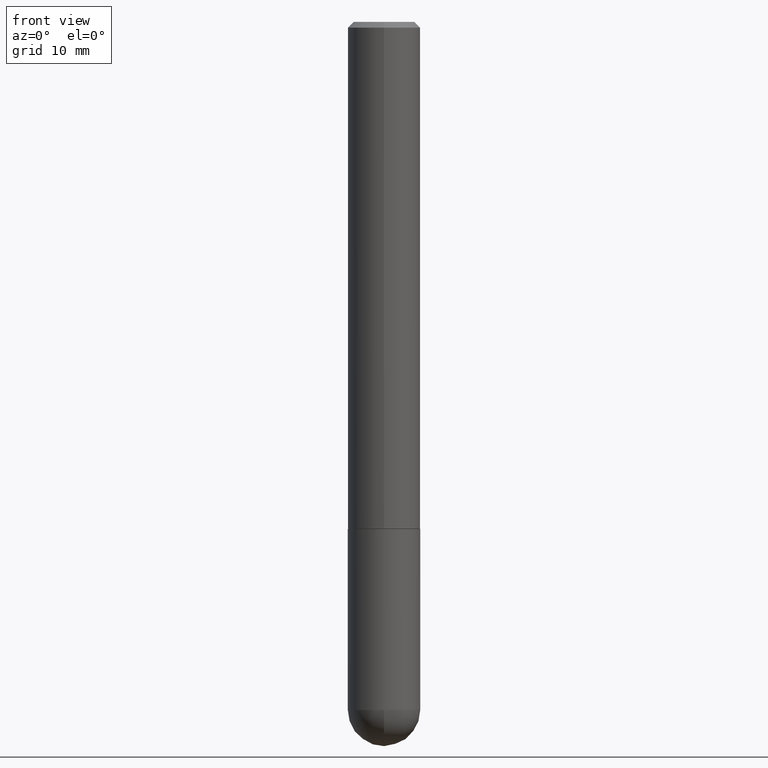
[diagram: clean part render]
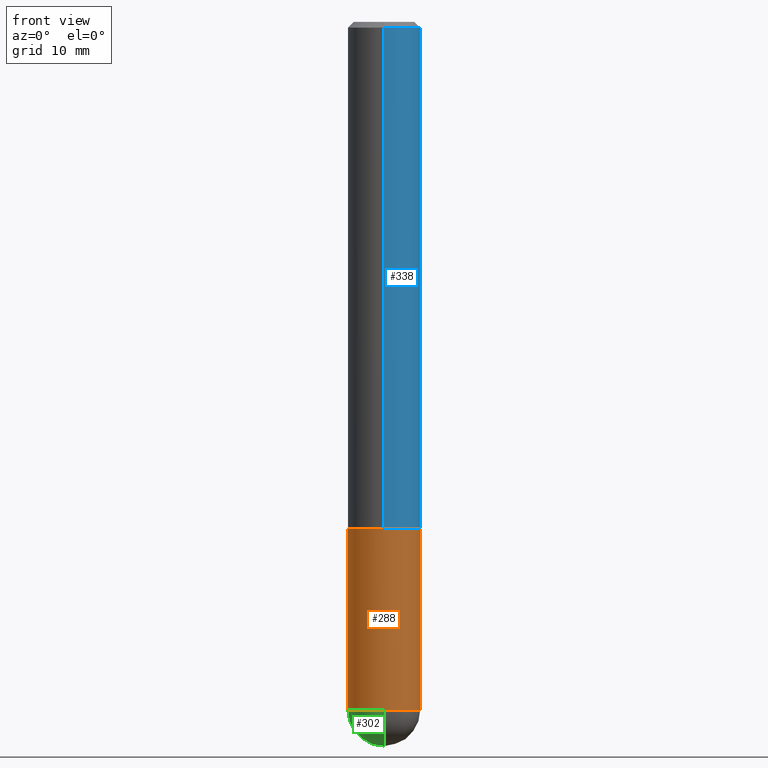
[diagram: same view with three faces highlighted in distinct colors, each labeled with its STEP entity id]
A machine part, front view with three faces highlighted in distinct colors.
Their STEP definitions:

[orange] entity #288 — the highlighted cylindrical surface (edge-blend (fillet) strip) has radius 3.175 mm, axis along (-0, 0, 1).
#3 = DIRECTION ( 'NONE',  ( -2.445468806185136597E-29, 3.491481338843145583E-15, 1.000000000000000000 ) ) ;
#6 = LINE ( 'NONE', #159, #23 ) ;
#11 = EDGE_LOOP ( 'NONE', ( #32, #266, #256, #381, #195 ) ) ;
#18 = CARTESIAN_POINT ( 'NONE',  ( -0.1250000000000000000, 8.881784197001252323E-16, -6.148668862818632227E-30 ) ) ;
#21 = EDGE_CURVE ( 'NONE', #353, #292, #305, .T. ) ;
#23 = VECTOR ( 'NONE', #323, 39.37007874015748143 ) ;
#24 = CARTESIAN_POINT ( 'NONE',  ( 5.807988414689700538E-29, -8.292268179752471696E-15, -2.375000000000000000 ) ) ;
#32 = ORIENTED_EDGE ( 'NONE', *, *, #21, .F. ) ;
#36 = AXIS2_PLACEMENT_3D ( 'NONE', #24, #248, #343 ) ;
#38 = FACE_OUTER_BOUND ( 'NONE', #11, .T. ) ;
#52 = CARTESIAN_POINT ( 'NONE',  ( 0.1250000000000000000, -8.074050596074771916E-15, -2.375000000000000000 ) ) ;
#61 = CARTESIAN_POINT ( 'NONE',  ( 4.279570410823989044E-29, -6.110092342975505460E-15, -1.750000000000000222 ) ) ;
#77 = EDGE_CURVE ( 'NONE', #226, #198, #390, .T. ) ;
#83 = CARTESIAN_POINT ( 'NONE',  ( 5.807988414689700538E-29, -8.292268179752471696E-15, -2.375000000000000000 ) ) ;
#93 = CYLINDRICAL_SURFACE ( 'NONE', #161, 0.1250000000000000000 ) ;
#95 = AXIS2_PLACEMENT_3D ( 'NONE', #61, #183, #315 ) ;
#106 = DIRECTION ( 'NONE',  ( -2.445468806185136877E-29, 3.491481338843145188E-15, 1.000000000000000000 ) ) ;
#129 = CARTESIAN_POINT ( 'NONE',  ( -8.881784197000694204E-16, -0.1250000000000086320, -2.374999999999999556 ) ) ;
#132 = VERTEX_POINT ( 'NONE', #214 ) ;
#143 = EDGE_CURVE ( 'NONE', #353, #226, #290, .T. ) ;
#159 = CARTESIAN_POINT ( 'NONE',  ( 0.1250000000000000000, -8.728703347107833388E-16, 6.095220969744919741E-30 ) ) ;
#161 = AXIS2_PLACEMENT_3D ( 'NONE', #388, #3, #318 ) ;
#181 = DIRECTION ( 'NONE',  ( 1.000000000000000000, -6.982962677686270655E-15, 0.000000000000000000 ) ) ;
#183 = DIRECTION ( 'NONE',  ( -2.445468806185136597E-29, 3.491481338843145583E-15, 1.000000000000000000 ) ) ;
#184 = AXIS2_PLACEMENT_3D ( 'NONE', #83, #207, #181 ) ;
#195 = ORIENTED_EDGE ( 'NONE', *, *, #354, .F. ) ;
#198 = VERTEX_POINT ( 'NONE', #52 ) ;
#207 = DIRECTION ( 'NONE',  ( -2.445468806185136597E-29, 3.491481338843145583E-15, 1.000000000000000000 ) ) ;
#214 = CARTESIAN_POINT ( 'NONE',  ( 0.1250000000000000000, -6.982962677686288010E-15, -1.750000000000000222 ) ) ;
#226 = VERTEX_POINT ( 'NONE', #129 ) ;
#227 = VECTOR ( 'NONE', #106, 39.37007874015748143 ) ;
#248 = DIRECTION ( 'NONE',  ( -2.445468806185136597E-29, 3.491481338843145583E-15, 1.000000000000000000 ) ) ;
#249 = CIRCLE ( 'NONE', #95, 0.1250000000000000000 ) ;
#256 = ORIENTED_EDGE ( 'NONE', *, *, #77, .T. ) ;
#258 = CARTESIAN_POINT ( 'NONE',  ( -0.1250000000000000000, -6.313001841663863345E-15, -1.750000000000000222 ) ) ;
#266 = ORIENTED_EDGE ( 'NONE', *, *, #143, .T. ) ;
#288 = ADVANCED_FACE ( 'NONE', ( #38 ), #93, .T. ) ;
#290 = CIRCLE ( 'NONE', #184, 0.1250000000000000000 ) ;
#292 = VERTEX_POINT ( 'NONE', #258 ) ;
#305 = LINE ( 'NONE', #18, #227 ) ;
#315 = DIRECTION ( 'NONE',  ( 1.000000000000000000, -6.982962677686262766E-15, 0.000000000000000000 ) ) ;
#318 = DIRECTION ( 'NONE',  ( 1.000000000000000000, -6.982962677686266711E-15, 4.876176775795935793E-29 ) ) ;
#323 = DIRECTION ( 'NONE',  ( -2.445468806185136877E-29, 3.491481338843145188E-15, 1.000000000000000000 ) ) ;
#343 = DIRECTION ( 'NONE',  ( 1.000000000000000000, -6.982962677686270655E-15, 0.000000000000000000 ) ) ;
#345 = CARTESIAN_POINT ( 'NONE',  ( -0.1250000000000000000, -6.313001841663864134E-15, -2.375000000000000000 ) ) ;
#353 = VERTEX_POINT ( 'NONE', #345 ) ;
#354 = EDGE_CURVE ( 'NONE', #292, #132, #249, .T. ) ;
#381 = ORIENTED_EDGE ( 'NONE', *, *, #382, .T. ) ;
#382 = EDGE_CURVE ( 'NONE', #198, #132, #6, .T. ) ;
#388 = CARTESIAN_POINT ( 'NONE',  ( 0.000000000000000000, 0.000000000000000000, 0.000000000000000000 ) ) ;
#390 = CIRCLE ( 'NONE', #36, 0.1250000000000000000 ) ;

[blue] entity #338 — the highlighted cylindrical surface (edge-blend (fillet) strip) has radius 3.175 mm, axis along (-0, 0, 1).
#10 = EDGE_LOOP ( 'NONE', ( #160, #44, #104, #205 ) ) ;
#13 = VERTEX_POINT ( 'NONE', #334 ) ;
#19 = DIRECTION ( 'NONE',  ( -6.982962677686265133E-15, -1.000000000000000000, 4.370956789862812472E-15 ) ) ;
#26 = CARTESIAN_POINT ( 'NONE',  ( 4.891412266665553962E-31, -6.982282945719821124E-17, -0.02000000000000002470 ) ) ;
#28 = AXIS2_PLACEMENT_3D ( 'NONE', #174, #306, #19 ) ;
#35 = EDGE_CURVE ( 'NONE', #13, #328, #175, .T. ) ;
#39 = CARTESIAN_POINT ( 'NONE',  ( 8.728703347107837333E-16, 0.1249999999999999306, -0.02000000000000046185 ) ) ;
#44 = ORIENTED_EDGE ( 'NONE', *, *, #72, .T. ) ;
#57 = AXIS2_PLACEMENT_3D ( 'NONE', #26, #307, #148 ) ;
#72 = EDGE_CURVE ( 'NONE', #326, #412, #241, .T. ) ;
#99 = CYLINDRICAL_SURFACE ( 'NONE', #200, 0.1250000000000001110 ) ;
#104 = ORIENTED_EDGE ( 'NONE', *, *, #147, .F. ) ;
#121 = CARTESIAN_POINT ( 'NONE',  ( 8.881784197001260212E-16, 0.1250000000000001110, -4.363926841074887247E-16 ) ) ;
#130 = FACE_OUTER_BOUND ( 'NONE', #10, .T. ) ;
#147 = EDGE_CURVE ( 'NONE', #328, #412, #213, .T. ) ;
#148 = DIRECTION ( 'NONE',  ( -6.982962677686265922E-15, -1.000000000000000000, 3.483106191921935554E-15 ) ) ;
#149 = CARTESIAN_POINT ( 'NONE',  ( 8.881784197001479121E-16, 0.1249999999999941019, -1.749000000000000554 ) ) ;
#160 = ORIENTED_EDGE ( 'NONE', *, *, #210, .T. ) ;
#174 = CARTESIAN_POINT ( 'NONE',  ( 4.277540027199021844E-29, -6.106006436031975850E-15, -1.749000000000000110 ) ) ;
#175 = LINE ( 'NONE', #372, #254 ) ;
#188 = CARTESIAN_POINT ( 'NONE',  ( -8.575622497214408537E-16, -0.1250000000000000555, -0.01999999999999959102 ) ) ;
#200 = AXIS2_PLACEMENT_3D ( 'NONE', #260, #224, #284 ) ;
#205 = ORIENTED_EDGE ( 'NONE', *, *, #35, .F. ) ;
#210 = EDGE_CURVE ( 'NONE', #13, #326, #352, .T. ) ;
#213 = CIRCLE ( 'NONE', #57, 0.1250000000000000000 ) ;
#224 = DIRECTION ( 'NONE',  ( -2.445706133332774021E-29, 3.491141472859906642E-15, 1.000000000000000000 ) ) ;
#241 = LINE ( 'NONE', #121, #335 ) ;
#254 = VECTOR ( 'NONE', #281, 39.37007874015748143 ) ;
#260 = CARTESIAN_POINT ( 'NONE',  ( 0.000000000000000000, 0.000000000000000000, 0.000000000000000000 ) ) ;
#281 = DIRECTION ( 'NONE',  ( -2.445706133332773740E-29, 3.491141472859906642E-15, 1.000000000000000000 ) ) ;
#284 = DIRECTION ( 'NONE',  ( -6.982962677686266711E-15, -1.000000000000000000, 3.491141472859906642E-15 ) ) ;
#306 = DIRECTION ( 'NONE',  ( -2.445706133332774021E-29, 3.491141472859906642E-15, 1.000000000000000000 ) ) ;
#307 = DIRECTION ( 'NONE',  ( -2.445706133332774021E-29, 3.491141472859906642E-15, 1.000000000000000000 ) ) ;
#311 = DIRECTION ( 'NONE',  ( -2.445706133332773740E-29, 3.491141472859906642E-15, 1.000000000000000000 ) ) ;
#326 = VERTEX_POINT ( 'NONE', #149 ) ;
#328 = VERTEX_POINT ( 'NONE', #188 ) ;
#334 = CARTESIAN_POINT ( 'NONE',  ( -8.728703347107421208E-16, -0.1250000000000063560, -1.748999999999999666 ) ) ;
#335 = VECTOR ( 'NONE', #311, 39.37007874015748143 ) ;
#338 = ADVANCED_FACE ( 'NONE', ( #130 ), #99, .T. ) ;
#352 = CIRCLE ( 'NONE', #28, 0.1250000000000002498 ) ;
#372 = CARTESIAN_POINT ( 'NONE',  ( -8.728703347107841277E-16, -0.1250000000000001110, 4.363926841074887247E-16 ) ) ;
#412 = VERTEX_POINT ( 'NONE', #39 ) ;

[green] entity #302 — the highlighted spherical surface has radius 3.175 mm.
#27 = SPHERICAL_SURFACE ( 'NONE', #67, 0.1250000000000001943 ) ;
#41 = ORIENTED_EDGE ( 'NONE', *, *, #206, .F. ) ;
#66 = CARTESIAN_POINT ( 'NONE',  ( 5.476868636775814291E-29, -8.766450547892521992E-15, -2.375000000000000000 ) ) ;
#67 = AXIS2_PLACEMENT_3D ( 'NONE', #66, #223, #350 ) ;
#83 = CARTESIAN_POINT ( 'NONE',  ( 5.807988414689700538E-29, -8.292268179752471696E-15, -2.375000000000000000 ) ) ;
#84 = AXIS2_PLACEMENT_3D ( 'NONE', #349, #97, #252 ) ;
#89 = CARTESIAN_POINT ( 'NONE',  ( 5.476868636775814291E-29, -8.766450547892521992E-15, -2.375000000000000000 ) ) ;
#91 = DIRECTION ( 'NONE',  ( -7.105427357601000281E-15, -1.000000000000000000, 0.000000000000000000 ) ) ;
#97 = DIRECTION ( 'NONE',  ( -2.445468806185136597E-29, 3.491481338843145583E-15, 1.000000000000000000 ) ) ;
#116 = DIRECTION ( 'NONE',  ( 6.982962677686265133E-15, 1.000000000000000000, 0.000000000000000000 ) ) ;
#118 = EDGE_CURVE ( 'NONE', #231, #226, #370, .T. ) ;
#129 = CARTESIAN_POINT ( 'NONE',  ( -8.881784197000694204E-16, -0.1250000000000086320, -2.374999999999999556 ) ) ;
#143 = EDGE_CURVE ( 'NONE', #353, #226, #290, .T. ) ;
#178 = CIRCLE ( 'NONE', #84, 0.1250000000000000000 ) ;
#181 = DIRECTION ( 'NONE',  ( 1.000000000000000000, -6.982962677686270655E-15, 0.000000000000000000 ) ) ;
#182 = CARTESIAN_POINT ( 'NONE',  ( 5.476868636775814291E-29, -8.766450547892521992E-15, -2.375000000000000000 ) ) ;
#184 = AXIS2_PLACEMENT_3D ( 'NONE', #83, #207, #181 ) ;
#192 = CIRCLE ( 'NONE', #377, 0.1250000000000001943 ) ;
#202 = ORIENTED_EDGE ( 'NONE', *, *, #265, .F. ) ;
#206 = EDGE_CURVE ( 'NONE', #231, #391, #192, .T. ) ;
#207 = DIRECTION ( 'NONE',  ( -2.445468806185136597E-29, 3.491481338843145583E-15, 1.000000000000000000 ) ) ;
#220 = AXIS2_PLACEMENT_3D ( 'NONE', #89, #239, #91 ) ;
#223 = DIRECTION ( 'NONE',  ( -1.000000000000000000, 6.982962677686265922E-15, -4.883557194083112901E-29 ) ) ;
#226 = VERTEX_POINT ( 'NONE', #129 ) ;
#228 = CARTESIAN_POINT ( 'NONE',  ( 8.728703347108403340E-16, 0.1249999999999915623, -2.375000000000000888 ) ) ;
#231 = VERTEX_POINT ( 'NONE', #320 ) ;
#239 = DIRECTION ( 'NONE',  ( -1.000000000000000000, 7.105427357601001070E-15, -4.926315508542082329E-29 ) ) ;
#252 = DIRECTION ( 'NONE',  ( 1.000000000000000000, -6.982962677686270655E-15, 0.000000000000000000 ) ) ;
#265 = EDGE_CURVE ( 'NONE', #391, #353, #178, .T. ) ;
#290 = CIRCLE ( 'NONE', #184, 0.1250000000000000000 ) ;
#302 = ADVANCED_FACE ( 'NONE', ( #348 ), #27, .T. ) ;
#313 = DIRECTION ( 'NONE',  ( 1.000000000000000000, -6.982962677686265922E-15, 4.883557194083112340E-29 ) ) ;
#320 = CARTESIAN_POINT ( 'NONE',  ( 5.787897026856327965E-29, -9.195231672753244292E-15, -2.500000000000000444 ) ) ;
#345 = CARTESIAN_POINT ( 'NONE',  ( -0.1250000000000000000, -6.313001841663864134E-15, -2.375000000000000000 ) ) ;
#348 = FACE_OUTER_BOUND ( 'NONE', #400, .T. ) ;
#349 = CARTESIAN_POINT ( 'NONE',  ( 5.807988414689700538E-29, -8.292268179752471696E-15, -2.375000000000000000 ) ) ;
#350 = DIRECTION ( 'NONE',  ( 6.982962677686265922E-15, 1.000000000000000000, -4.370956789862814839E-15 ) ) ;
#353 = VERTEX_POINT ( 'NONE', #345 ) ;
#366 = ORIENTED_EDGE ( 'NONE', *, *, #118, .T. ) ;
#370 = CIRCLE ( 'NONE', #220, 0.1250000000000001943 ) ;
#377 = AXIS2_PLACEMENT_3D ( 'NONE', #182, #313, #116 ) ;
#386 = ORIENTED_EDGE ( 'NONE', *, *, #143, .F. ) ;
#391 = VERTEX_POINT ( 'NONE', #228 ) ;
#400 = EDGE_LOOP ( 'NONE', ( #41, #366, #386, #202 ) ) ;